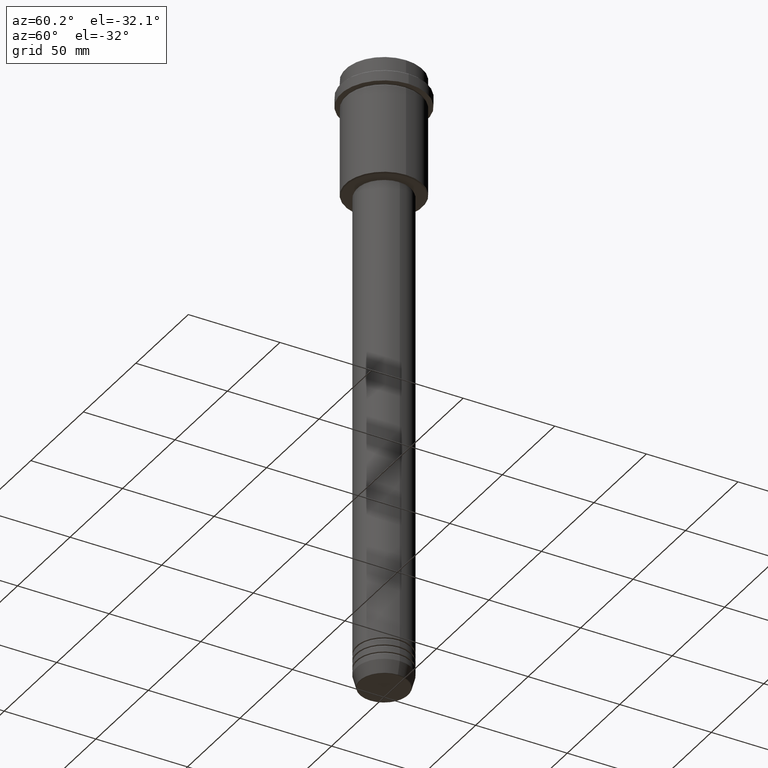
[diagram: clean part render]
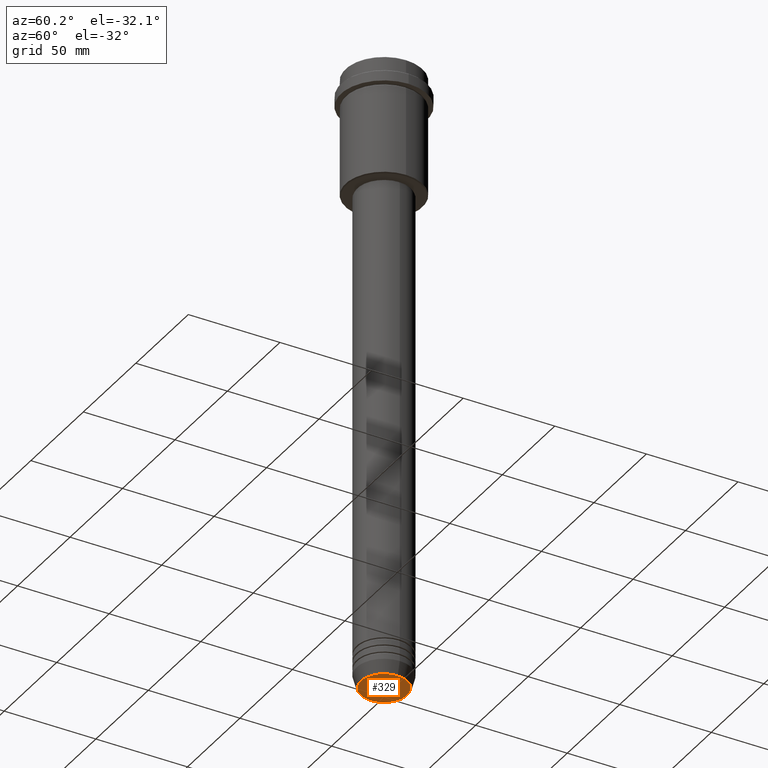
[diagram: same view with one face highlighted and labeled with its STEP entity id]
A machine part, auxiliary view. The second image highlights one B-rep face of the part: STEP entity #329.
In plain terms, the highlighted planar face has unit normal (0, -0, 1).
Its self-contained STEP definition (entity closure, byte-faithful):
#60 = CARTESIAN_POINT ( 'NONE',  ( 0.000000000000000000, 0.000000000000000000, -340.0000000000000000 ) ) ;
#73 = DIRECTION ( 'NONE',  ( 0.000000000000000000, 0.000000000000000000, -1.000000000000000000 ) ) ;
#150 = ORIENTED_EDGE ( 'NONE', *, *, #683, .T. ) ;
#191 = DIRECTION ( 'NONE',  ( 1.000000000000000000, 0.000000000000000000, 0.000000000000000000 ) ) ;
#207 = EDGE_LOOP ( 'NONE', ( #538, #150 ) ) ;
#286 = DIRECTION ( 'NONE',  ( 0.000000000000000000, -0.000000000000000000, 1.000000000000000000 ) ) ;
#329 = ADVANCED_FACE ( 'NONE', ( #395 ), #376, .F. ) ;
#376 = PLANE ( 'NONE',  #908 ) ;
#395 = FACE_OUTER_BOUND ( 'NONE', #207, .T. ) ;
#489 = EDGE_CURVE ( 'NONE', #1010, #800, #1054, .T. ) ;
#509 = DIRECTION ( 'NONE',  ( 1.000000000000000000, 0.000000000000000000, 0.000000000000000000 ) ) ;
#538 = ORIENTED_EDGE ( 'NONE', *, *, #489, .T. ) ;
#569 = CIRCLE ( 'NONE', #589, 12.74069215899265828 ) ;
#589 = AXIS2_PLACEMENT_3D ( 'NONE', #1058, #73, #509 ) ;
#683 = EDGE_CURVE ( 'NONE', #800, #1010, #569, .T. ) ;
#706 = AXIS2_PLACEMENT_3D ( 'NONE', #946, #1179, #191 ) ;
#800 = VERTEX_POINT ( 'NONE', #1086 ) ;
#908 = AXIS2_PLACEMENT_3D ( 'NONE', #60, #286, #933 ) ;
#933 = DIRECTION ( 'NONE',  ( 1.000000000000000000, 0.000000000000000000, 0.000000000000000000 ) ) ;
#946 = CARTESIAN_POINT ( 'NONE',  ( 0.000000000000000000, 0.000000000000000000, -340.0000000000000000 ) ) ;
#1010 = VERTEX_POINT ( 'NONE', #1153 ) ;
#1054 = CIRCLE ( 'NONE', #706, 12.74069215899265828 ) ;
#1058 = CARTESIAN_POINT ( 'NONE',  ( 0.000000000000000000, 0.000000000000000000, -340.0000000000000000 ) ) ;
#1086 = CARTESIAN_POINT ( 'NONE',  ( -12.74069215899265828, 1.589857736427680246E-15, -340.0000000000000000 ) ) ;
#1153 = CARTESIAN_POINT ( 'NONE',  ( 12.74069215899265828, 0.000000000000000000, -340.0000000000000000 ) ) ;
#1179 = DIRECTION ( 'NONE',  ( 0.000000000000000000, 0.000000000000000000, -1.000000000000000000 ) ) ;